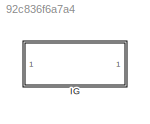
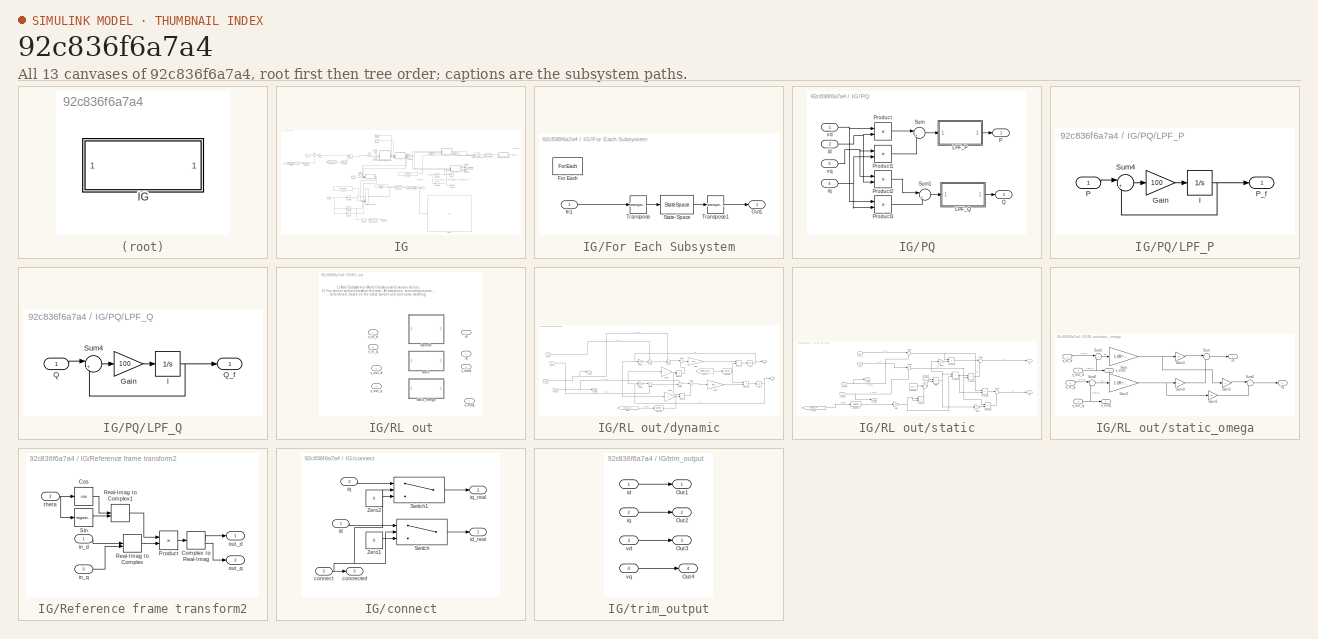
[diagram: thumbnail index - all 13 canvases of the model, root first then tree order]
MODEL slx_92c836f6a7a4
KIND model
CONFIG AbsTol = auto
CONFIG EnableMultiTasking = off
CONFIG FixedStep = auto
CONFIG MaxStep = auto
CONFIG MinStep = auto
CONFIG RelTol = 1e-3
CONFIG SampleTimeConstraint = Unconstrained
CONFIG SolverName = VariableStepAuto
CONFIG StartTime = 0.0
CONFIG StopTime = 10.0
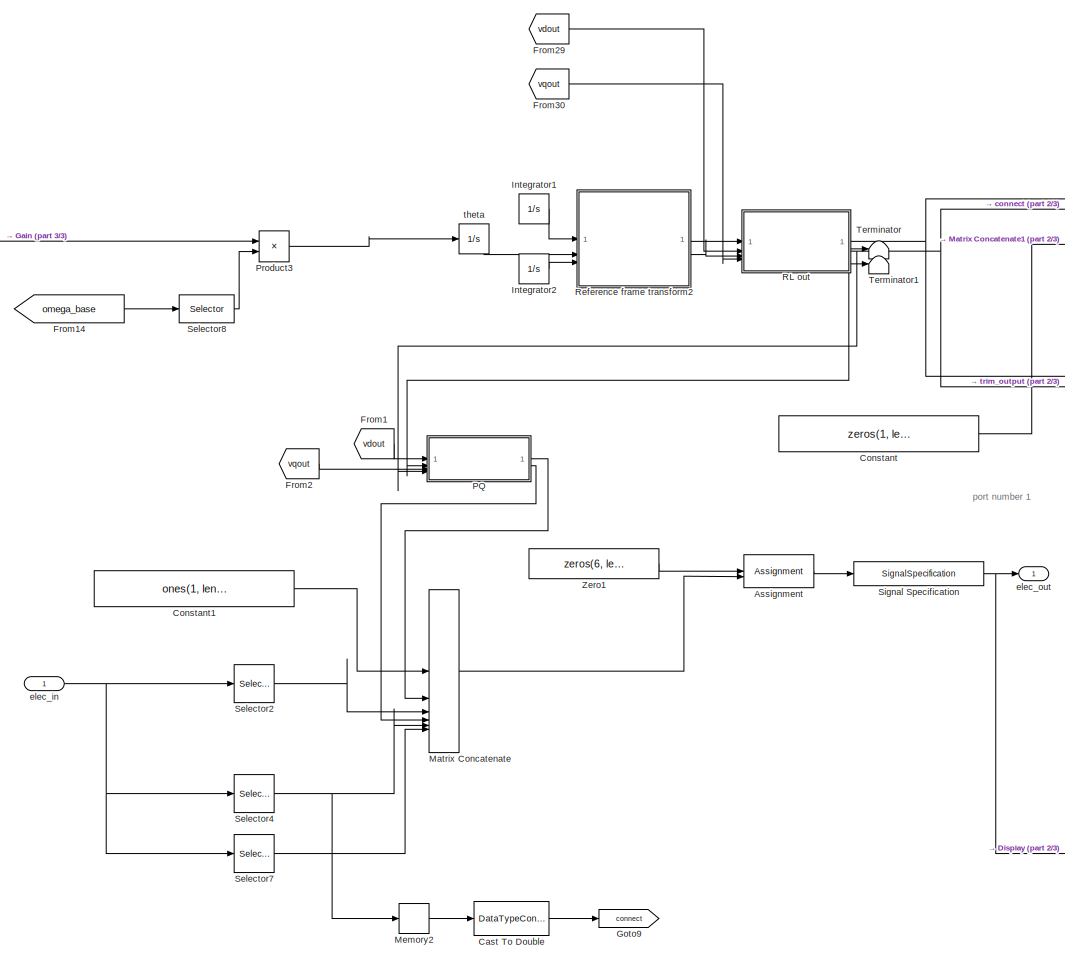
[diagram: IG - part 1/3, center side, full height]
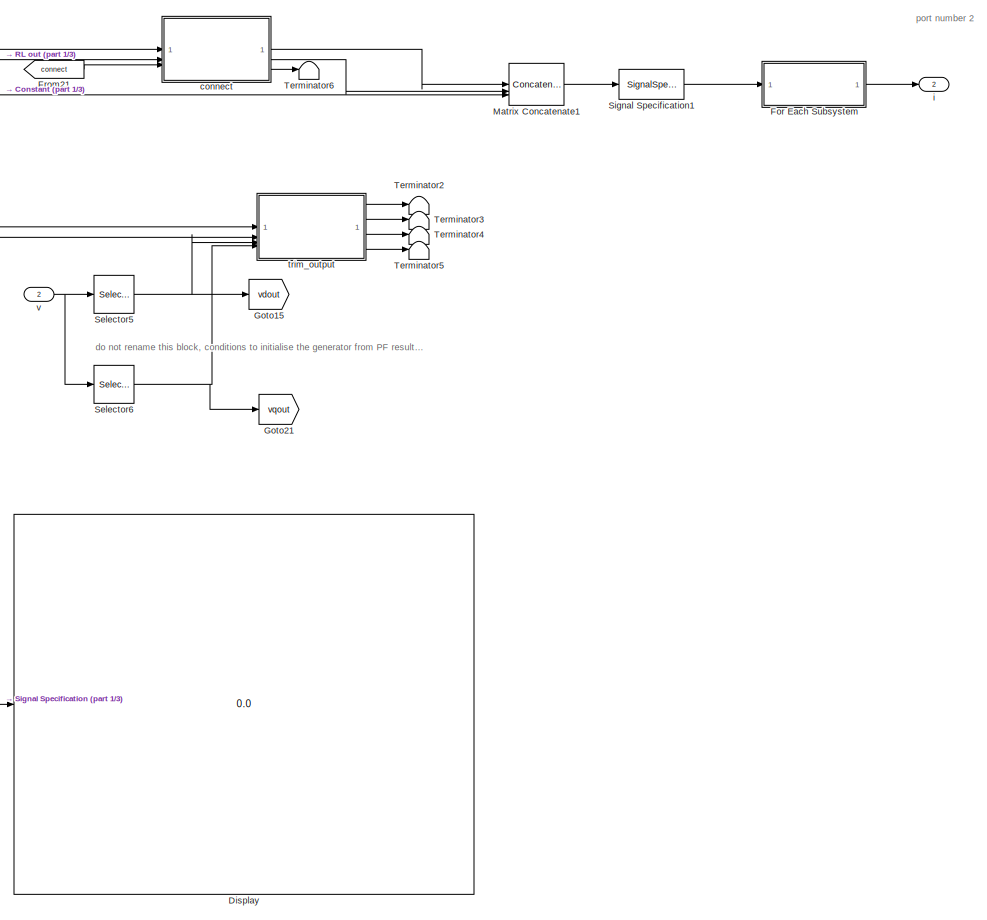
[diagram: IG - part 2/3, right side, full height]
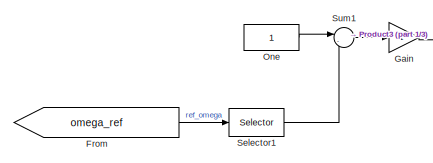
[diagram: IG - part 3/3, top left region]
BLOCK [SubSystem] IG
  Commented = on
BLOCK [Assignment] IG/Assignment
  DiagnosticForDimensions = Warning
  IndexOptions = Assign all,Index vector (dialog)
  Indices = 1,block_idx
  NumberOfDimensions = 2
  OutputSizes = 1,1
BLOCK [DataTypeConversion] IG/Cast To Double
  OutDataTypeStr = boolean
  RndMeth = Floor
  SaturateOnIntegerOverflow = off
BLOCK [Constant] IG/Constant
  Value = zeros(1, length(block_buses))
  VectorParams1D = off
BLOCK [Constant] IG/Constant1
  Value = ones(1, length(block_buses))
  VectorParams1D = off
BLOCK [Display] IG/Display
  Decimation = 1
BLOCK [SubSystem] IG/For Each Subsystem
  TreatAsAtomicUnit = on
BLOCK [ForEach] IG/For Each Subsystem/For Each
  DisableCoverage = on
BLOCK [Inport] IG/For Each Subsystem/In1
  Partition = on
  PartitionDimension = 1
  PartitionOffset = 0
  PartitionWidth = 1
BLOCK [Outport] IG/For Each Subsystem/Out1
  ConcatenationDimension = 1
BLOCK [StateSpace] IG/For Each Subsystem/State-Space
  A = []
  B = []
  C = []
  D = block_toM
  InitialCondition = 0
  ParameterTunability = Optimized
BLOCK [Math] IG/For Each Subsystem/Transpose
  Operator = transpose
BLOCK [Math] IG/For Each Subsystem/Transpose1
  Operator = transpose
BLOCK [From] IG/From
  GotoTag = omega_ref
  TagVisibility = scoped
BLOCK [From] IG/From1
  GotoTag = vdout
BLOCK [From] IG/From14
  GotoTag = omega_base
  TagVisibility = scoped
BLOCK [From] IG/From2
  GotoTag = vqout
BLOCK [From] IG/From21
  GotoTag = connect
BLOCK [From] IG/From29
  GotoTag = vdout
BLOCK [From] IG/From30
  GotoTag = vqout
BLOCK [Gain] IG/Gain
  Gain = -1
BLOCK [Goto] IG/Goto15
  GotoTag = vdout
BLOCK [Goto] IG/Goto21
  GotoTag = vqout
BLOCK [Goto] IG/Goto9
  GotoTag = connect
BLOCK [Integrator] IG/Integrator1
  InitialCondition = Grid_op_IG.op.States(1).x'
BLOCK [Integrator] IG/Integrator2
  InitialCondition = Grid_op_IG.op.States(2).x'
BLOCK [Concatenate] IG/Matrix Concatenate
  Mode = Multidimensional array
  NumInputs = 6
BLOCK [Concatenate] IG/Matrix Concatenate1
  Mode = Multidimensional array
  NumInputs = 3
BLOCK [Memory] IG/Memory2
  InitialCondition = 1
BLOCK [Constant] IG/One
  OutDataTypeStr = Inherit: Inherit via back propagation
BLOCK [SubSystem] IG/PQ
BLOCK [SubSystem] IG/PQ/LPF_P
BLOCK [Gain] IG/PQ/LPF_P/Gain
  Gain = 100
BLOCK [Integrator] IG/PQ/LPF_P/I
  InitialCondition = Grid_op_IG.op.States(3).x'
BLOCK [Inport] IG/PQ/LPF_P/P
BLOCK [Outport] IG/PQ/LPF_P/P_f
BLOCK [Sum] IG/PQ/LPF_P/Sum4
  Inputs = |+-
BLOCK [SubSystem] IG/PQ/LPF_Q
BLOCK [Gain] IG/PQ/LPF_Q/Gain
  Gain = 100
BLOCK [Integrator] IG/PQ/LPF_Q/I
  InitialCondition = Grid_op_IG.op.States(4).x'
BLOCK [Inport] IG/PQ/LPF_Q/Q
BLOCK [Outport] IG/PQ/LPF_Q/Q_f
BLOCK [Sum] IG/PQ/LPF_Q/Sum4
  Inputs = |+-
BLOCK [Outport] IG/PQ/P
BLOCK [Product] IG/PQ/Product
BLOCK [Product] IG/PQ/Product1
BLOCK [Product] IG/PQ/Product2
BLOCK [Product] IG/PQ/Product3
BLOCK [Outport] IG/PQ/Q
  Port = 2
BLOCK [Sum] IG/PQ/Sum
  Inputs = |++
BLOCK [Sum] IG/PQ/Sum1
  Inputs = |+-
BLOCK [Inport] IG/PQ/id
  Port = 2
BLOCK [Inport] IG/PQ/iq
  Port = 4
BLOCK [Inport] IG/PQ/vd
BLOCK [Inport] IG/PQ/vq
  Port = 3
BLOCK [Product] IG/Product3
BLOCK [SubSystem] IG/RL out
  LabelModeActiveChoice = dynamic
  Variant = on
  VariantControlMode = label
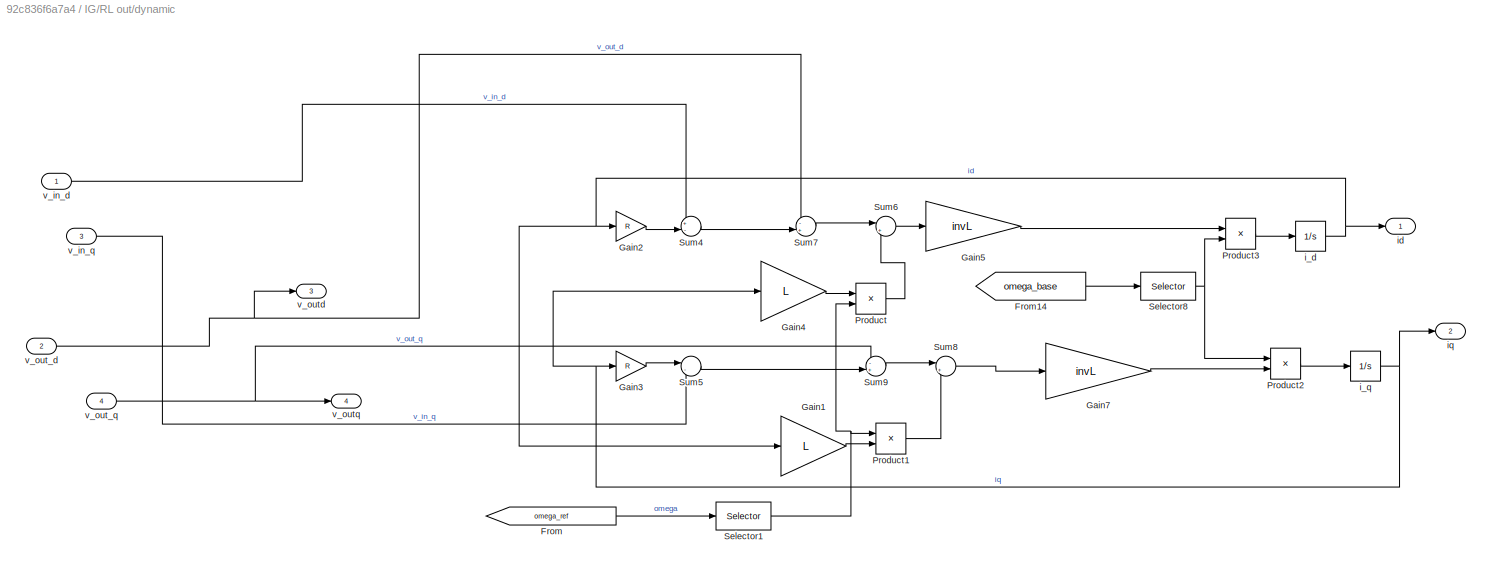
BLOCK [SubSystem] IG/RL out/dynamic
  VariantControl = dynamic
BLOCK [From] IG/RL out/dynamic/From
  GotoTag = omega_ref
  TagVisibility = scoped
BLOCK [From] IG/RL out/dynamic/From14
  GotoTag = omega_base
  TagVisibility = scoped
BLOCK [Gain] IG/RL out/dynamic/Gain1
  Gain = L
BLOCK [Gain] IG/RL out/dynamic/Gain2
  Gain = R
BLOCK [Gain] IG/RL out/dynamic/Gain3
  Gain = R
BLOCK [Gain] IG/RL out/dynamic/Gain4
  Gain = L
BLOCK [Gain] IG/RL out/dynamic/Gain5
  Gain = invL
BLOCK [Gain] IG/RL out/dynamic/Gain7
  Gain = invL
BLOCK [Product] IG/RL out/dynamic/Product
BLOCK [Product] IG/RL out/dynamic/Product1
BLOCK [Product] IG/RL out/dynamic/Product2
BLOCK [Product] IG/RL out/dynamic/Product3
BLOCK [Selector] IG/RL out/dynamic/Selector1
  IndexOptions = Index vector (dialog)
  Indices = block_fref
  InputPortWidth = length(fref.ref_units)
  OutputSizes = 1
BLOCK [Selector] IG/RL out/dynamic/Selector8
  IndexOptions = Index vector (dialog)
  Indices = block_fref
  InputPortWidth = length(fref.ref_units)
  OutputSizes = 1
BLOCK [Sum] IG/RL out/dynamic/Sum4
  Inputs = +-|
BLOCK [Sum] IG/RL out/dynamic/Sum5
  Inputs = |-+
BLOCK [Sum] IG/RL out/dynamic/Sum6
  Inputs = |++
BLOCK [Sum] IG/RL out/dynamic/Sum7
  Inputs = -+|
BLOCK [Sum] IG/RL out/dynamic/Sum8
  Inputs = |+-
BLOCK [Sum] IG/RL out/dynamic/Sum9
  Inputs = -+|
BLOCK [Integrator] IG/RL out/dynamic/i_d
  InitialCondition = Grid_op_IG.op.States(5).x'
BLOCK [Integrator] IG/RL out/dynamic/i_q
  InitialCondition = Grid_op_IG.op.States(6).x'
BLOCK [Outport] IG/RL out/dynamic/id
  IconDisplay = Signal name
BLOCK [Outport] IG/RL out/dynamic/iq
  IconDisplay = Signal name
  Port = 2
BLOCK [Inport] IG/RL out/dynamic/v_in_d
  IconDisplay = Signal name
BLOCK [Inport] IG/RL out/dynamic/v_in_q
  IconDisplay = Signal name
  Port = 3
BLOCK [Inport] IG/RL out/dynamic/v_out_d
  Port = 2
BLOCK [Inport] IG/RL out/dynamic/v_out_q
  Port = 4
BLOCK [Outport] IG/RL out/dynamic/v_outd
  Port = 3
BLOCK [Outport] IG/RL out/dynamic/v_outq
  Port = 4
BLOCK [Outport] IG/RL out/id
BLOCK [Outport] IG/RL out/iq
  IconDisplay = Signal name
  Port = 2
BLOCK [SubSystem] IG/RL out/static
  VariantControl = static
BLOCK [Constant] IG/RL out/static/Constant
  Value = R.^2
BLOCK [Constant] IG/RL out/static/Constant1
BLOCK [Product] IG/RL out/static/Divide
  Inputs = */
BLOCK [From] IG/RL out/static/From
  GotoTag = omega_ref
  TagVisibility = scoped
BLOCK [Gain] IG/RL out/static/Gain
  Gain = L
BLOCK [Gain] IG/RL out/static/Gain1
  Gain = R
BLOCK [Gain] IG/RL out/static/Gain2
  Gain = R
BLOCK [Product] IG/RL out/static/Product
BLOCK [Product] IG/RL out/static/Product1
BLOCK [Product] IG/RL out/static/Product2
BLOCK [Product] IG/RL out/static/Product3
BLOCK [Product] IG/RL out/static/Product4
BLOCK [Product] IG/RL out/static/Product5
BLOCK [Selector] IG/RL out/static/Selector8
  IndexOptions = Index vector (dialog)
  Indices = block_fref
  InputPortWidth = length(fref.ref_units)
  OutputSizes = 1
BLOCK [Sum] IG/RL out/static/Sum
  Inputs = |++
BLOCK [Sum] IG/RL out/static/Sum1
  Inputs = |+-
BLOCK [Sum] IG/RL out/static/Sum2
  Inputs = |+-
BLOCK [Sum] IG/RL out/static/Sum3
  Inputs = |++
BLOCK [Sum] IG/RL out/static/Sum4
  Inputs = |-+
BLOCK [Outport] IG/RL out/static/id
BLOCK [Outport] IG/RL out/static/iq
  IconDisplay = Signal name
  Port = 2
BLOCK [Inport] IG/RL out/static/v_in_d
  IconDisplay = Signal name
BLOCK [Inport] IG/RL out/static/v_in_q
  IconDisplay = Signal name
  Port = 3
BLOCK [Inport] IG/RL out/static/v_out_d
  Port = 2
BLOCK [Inport] IG/RL out/static/v_out_q
  Port = 4
BLOCK [Outport] IG/RL out/static/v_outd
  Port = 3
BLOCK [Outport] IG/RL out/static/v_outq
  Port = 4
BLOCK [SubSystem] IG/RL out/static_omega
  VariantControl = static_omega
BLOCK [Gain] IG/RL out/static_omega/Gain
  Gain = 1./(R.^2+L.^2)
BLOCK [Gain] IG/RL out/static_omega/Gain2
  Gain = 1./(R.^2+L.^2)
BLOCK [Gain] IG/RL out/static_omega/Gain3
  Gain = R
BLOCK [Gain] IG/RL out/static_omega/Gain4
  Gain = L
BLOCK [Gain] IG/RL out/static_omega/Gain5
  Gain = L
BLOCK [Gain] IG/RL out/static_omega/Gain6
  Gain = R
BLOCK [Sum] IG/RL out/static_omega/Sum
  Inputs = |++
BLOCK [Sum] IG/RL out/static_omega/Sum1
  Inputs = |+-
BLOCK [Sum] IG/RL out/static_omega/Sum2
  Inputs = |+-
BLOCK [Sum] IG/RL out/static_omega/Sum3
  Inputs = |-+
BLOCK [Outport] IG/RL out/static_omega/id
BLOCK [Outport] IG/RL out/static_omega/iq
  IconDisplay = Signal name
  Port = 2
BLOCK [Inport] IG/RL out/static_omega/v_in_d
  IconDisplay = Signal name
BLOCK [Inport] IG/RL out/static_omega/v_in_q
  IconDisplay = Signal name
  Port = 3
BLOCK [Inport] IG/RL out/static_omega/v_out_d
  Port = 2
BLOCK [Inport] IG/RL out/static_omega/v_out_q
  Port = 4
BLOCK [Outport] IG/RL out/static_omega/v_outd
  Port = 3
BLOCK [Outport] IG/RL out/static_omega/v_outq
  Port = 4
BLOCK [Inport] IG/RL out/v_in_d
  IconDisplay = Signal name
BLOCK [Inport] IG/RL out/v_in_q
  IconDisplay = Signal name
  Port = 3
BLOCK [Inport] IG/RL out/v_out_d
  Port = 2
BLOCK [Inport] IG/RL out/v_out_q
  Port = 4
BLOCK [Outport] IG/RL out/v_outd
  Port = 3
BLOCK [Outport] IG/RL out/v_outq
  Port = 4
BLOCK [SubSystem] IG/Reference frame transform2
BLOCK [ComplexToRealImag] IG/Reference frame transform2/Complex to Real-Imag
BLOCK [Trigonometry] IG/Reference frame transform2/Cos
  Operator = cos
  SCDEnableBlockLinearizationSpecification = on
BLOCK [Product] IG/Reference frame transform2/Product
BLOCK [RealImagToComplex] IG/Reference frame transform2/Real-Imag to Complex
BLOCK [RealImagToComplex] IG/Reference frame transform2/Real-Imag to Complex1
BLOCK [Trigonometry] IG/Reference frame transform2/Sin
  SCDEnableBlockLinearizationSpecification = on
BLOCK [Inport] IG/Reference frame transform2/in_d
BLOCK [Inport] IG/Reference frame transform2/in_q
  Port = 3
BLOCK [Outport] IG/Reference frame transform2/out_d
BLOCK [Outport] IG/Reference frame transform2/out_q
  Port = 2
BLOCK [Inport] IG/Reference frame transform2/theta
  Port = 2
BLOCK [Selector] IG/Selector1
  IndexOptions = Index vector (dialog)
  Indices = block_fref
  InputPortWidth = length(fref.ref_units)
  OutputSizes = 1
BLOCK [Selector] IG/Selector2
  IndexOptions = Index vector (dialog),Index vector (dialog)
  Indices = 3,block_idx
  InputPortWidth = 3
  NumberOfDimensions = 2
  OutputSizes = 1,1
BLOCK [Selector] IG/Selector4
  IndexOptions = Index vector (dialog),Index vector (dialog)
  Indices = 5,block_idx
  InputPortWidth = 3
  NumberOfDimensions = 2
  OutputSizes = 1,1
BLOCK [Selector] IG/Selector5
  IndexOptions = Index vector (dialog),Index vector (dialog)
  Indices = 1,block_buses
  InputPortWidth = 3
  NumberOfDimensions = 2
  OutputSizes = 1,1
BLOCK [Selector] IG/Selector6
  IndexOptions = Index vector (dialog),Index vector (dialog)
  Indices = 2,block_buses
  InputPortWidth = 3
  NumberOfDimensions = 2
  OutputSizes = 1,1
BLOCK [Selector] IG/Selector7
  IndexOptions = Index vector (dialog),Index vector (dialog)
  Indices = 6,block_idx
  InputPortWidth = 3
  NumberOfDimensions = 2
  OutputSizes = 1,1
BLOCK [Selector] IG/Selector8
  IndexOptions = Index vector (dialog)
  Indices = block_fref
  InputPortWidth = length(fref.ref_units)
  OutputSizes = 1
BLOCK [SignalSpecification] IG/Signal Specification
  Dimensions = [6 length(buses_lf)]
BLOCK [SignalSpecification] IG/Signal Specification1
  Dimensions = [3 length(block_buses)]
BLOCK [Sum] IG/Sum1
  Inputs = |-+
BLOCK [Terminator] IG/Terminator
BLOCK [Terminator] IG/Terminator1
BLOCK [Terminator] IG/Terminator2
BLOCK [Terminator] IG/Terminator3
BLOCK [Terminator] IG/Terminator4
BLOCK [Terminator] IG/Terminator5
BLOCK [Terminator] IG/Terminator6
BLOCK [Constant] IG/Zero1
  OutDataTypeStr = Inherit: Inherit via back propagation
  Value = zeros(6, length(buses_lf))
  VectorParams1D = off
BLOCK [SubSystem] IG/connect
BLOCK [Switch] IG/connect/Switch
  Criteria = u2 > Threshold
  InputSameDT = off
  SaturateOnIntegerOverflow = off
  ZeroCross = off
BLOCK [Switch] IG/connect/Switch1
  Criteria = u2 > Threshold
  InputSameDT = off
  SaturateOnIntegerOverflow = off
  ZeroCross = off
BLOCK [Constant] IG/connect/Zero1
  OutDataTypeStr = Inherit: Inherit via back propagation
  Value = 0
  VectorParams1D = off
BLOCK [Constant] IG/connect/Zero2
  OutDataTypeStr = Inherit: Inherit via back propagation
  Value = 0
  VectorParams1D = off
BLOCK [Inport] IG/connect/connect
  Port = 3
BLOCK [Outport] IG/connect/connected
  OutDataTypeStr = boolean
  Port = 3
BLOCK [Inport] IG/connect/id
BLOCK [Outport] IG/connect/id_real
BLOCK [Inport] IG/connect/iq
  Port = 2
BLOCK [Outport] IG/connect/iq_real
  Port = 2
BLOCK [Inport] IG/elec_in
BLOCK [Outport] IG/elec_out
BLOCK [Outport] IG/i
  Port = 2
BLOCK [Integrator] IG/theta
  InitialCondition = Grid_op_IG.op.States(7).x'
  LowerSaturationLimit = 0
  UpperSaturationLimit = 2*pi
BLOCK [SubSystem] IG/trim_output
BLOCK [Outport] IG/trim_output/Out1
BLOCK [Outport] IG/trim_output/Out2
  Port = 2
BLOCK [Outport] IG/trim_output/Out3
  Port = 3
BLOCK [Outport] IG/trim_output/Out4
  Port = 4
BLOCK [Inport] IG/trim_output/id
BLOCK [Inport] IG/trim_output/iq
  Port = 2
BLOCK [Inport] IG/trim_output/vd
  Port = 3
BLOCK [Inport] IG/trim_output/vq
  Port = 4
BLOCK [Inport] IG/v
  Port = 2
ANNOTATION IG: do not rename this block, conditions to initialise the generator from PF result are set on this block's output
ANNOTATION IG: port number 1
ANNOTATION IG: port number 2
ANNOTATION IG/RL out: 1) Add Subsystem or Model blocks as valid variant choices. 2) You cannot connect blocks at this level. At simulation, connectivity is automatically determined, based on the active variant and port name matching.
LINE IG/Assignment:1 -> IG/Signal Specification:1
LINE IG/Cast To Double:1 -> IG/Goto9:1
LINE IG/Constant1:1 -> IG/Matrix Concatenate:1
LINE IG/Constant:1 -> IG/Matrix Concatenate1:3
LINE IG/For Each Subsystem/In1:1 -> IG/For Each Subsystem/Transpose:1
LINE IG/For Each Subsystem/State-Space:1 -> IG/For Each Subsystem/Transpose1:1
LINE IG/For Each Subsystem/Transpose1:1 -> IG/For Each Subsystem/Out1:1
LINE IG/For Each Subsystem/Transpose:1 -> IG/For Each Subsystem/State-Space:1
LINE IG/For Each Subsystem:1 -> IG/i:1
LINE IG/From14:1 -> IG/Selector8:1
LINE IG/From1:1 -> IG/PQ:1
LINE IG/From21:1 -> IG/connect:3
LINE IG/From29:1 -> IG/RL out:2
LINE IG/From2:1 -> IG/PQ:3
LINE IG/From30:1 -> IG/RL out:4
LINE IG/From:1 -> IG/Selector1:1
LINE IG/Gain:1 -> IG/Product3:1
LINE IG/Integrator1:1 -> IG/Reference frame transform2:1
LINE IG/Integrator2:1 -> IG/Reference frame transform2:3
LINE IG/Matrix Concatenate1:1 -> IG/Signal Specification1:1
LINE IG/Matrix Concatenate:1 -> IG/Assignment:2
LINE IG/Memory2:1 -> IG/Cast To Double:1
LINE IG/One:1 -> IG/Sum1:1
LINE IG/PQ/LPF_P/Gain:1 -> IG/PQ/LPF_P/I:1
NET IG/PQ/LPF_P/I:1 -> IG/PQ/LPF_P/P_f:1, IG/PQ/LPF_P/Sum4:2
LINE IG/PQ/LPF_P/P:1 -> IG/PQ/LPF_P/Sum4:1
LINE IG/PQ/LPF_P/Sum4:1 -> IG/PQ/LPF_P/Gain:1
LINE IG/PQ/LPF_P:1 -> IG/PQ/P:1
LINE IG/PQ/LPF_Q/Gain:1 -> IG/PQ/LPF_Q/I:1
NET IG/PQ/LPF_Q/I:1 -> IG/PQ/LPF_Q/Q_f:1, IG/PQ/LPF_Q/Sum4:2
LINE IG/PQ/LPF_Q/Q:1 -> IG/PQ/LPF_Q/Sum4:1
LINE IG/PQ/LPF_Q/Sum4:1 -> IG/PQ/LPF_Q/Gain:1
LINE IG/PQ/LPF_Q:1 -> IG/PQ/Q:1
LINE IG/PQ/Product1:1 -> IG/PQ/Sum:2
LINE IG/PQ/Product2:1 -> IG/PQ/Sum1:1
LINE IG/PQ/Product3:1 -> IG/PQ/Sum1:2
LINE IG/PQ/Product:1 -> IG/PQ/Sum:1
LINE IG/PQ/Sum1:1 -> IG/PQ/LPF_Q:1
LINE IG/PQ/Sum:1 -> IG/PQ/LPF_P:1
NET IG/PQ/id:1 -> IG/PQ/Product2:2, IG/PQ/Product:2
NET IG/PQ/iq:1 -> IG/PQ/Product1:2, IG/PQ/Product3:2
NET IG/PQ/vd:1 -> IG/PQ/Product3:1, IG/PQ/Product:1
NET IG/PQ/vq:1 -> IG/PQ/Product1:1, IG/PQ/Product2:1
LINE IG/PQ:1 -> IG/Matrix Concatenate:2
LINE IG/PQ:2 -> IG/Matrix Concatenate:4
LINE IG/Product3:1 -> IG/theta:1
LINE IG/RL out/dynamic/From14:1 -> IG/RL out/dynamic/Selector8:1
LINE IG/RL out/dynamic/From:1 -> IG/RL out/dynamic/Selector1:1
LINE IG/RL out/dynamic/Gain1:1 -> IG/RL out/dynamic/Product1:2
LINE IG/RL out/dynamic/Gain2:1 -> IG/RL out/dynamic/Sum4:2
LINE IG/RL out/dynamic/Gain3:1 -> IG/RL out/dynamic/Sum5:1
LINE IG/RL out/dynamic/Gain4:1 -> IG/RL out/dynamic/Product:1
LINE IG/RL out/dynamic/Gain5:1 -> IG/RL out/dynamic/Product3:1
LINE IG/RL out/dynamic/Gain7:1 -> IG/RL out/dynamic/Product2:2
LINE IG/RL out/dynamic/Product1:1 -> IG/RL out/dynamic/Sum8:2
LINE IG/RL out/dynamic/Product2:1 -> IG/RL out/dynamic/i_q:1
LINE IG/RL out/dynamic/Product3:1 -> IG/RL out/dynamic/i_d:1
LINE IG/RL out/dynamic/Product:1 -> IG/RL out/dynamic/Sum6:2
NET IG/RL out/dynamic/Selector1:1 -> IG/RL out/dynamic/Product1:1, IG/RL out/dynamic/Product:2
NET IG/RL out/dynamic/Selector8:1 -> IG/RL out/dynamic/Product2:1, IG/RL out/dynamic/Product3:2
LINE IG/RL out/dynamic/Sum4:1 -> IG/RL out/dynamic/Sum7:2
LINE IG/RL out/dynamic/Sum5:1 -> IG/RL out/dynamic/Sum9:2
LINE IG/RL out/dynamic/Sum6:1 -> IG/RL out/dynamic/Gain5:1
LINE IG/RL out/dynamic/Sum7:1 -> IG/RL out/dynamic/Sum6:1
LINE IG/RL out/dynamic/Sum8:1 -> IG/RL out/dynamic/Gain7:1
LINE IG/RL out/dynamic/Sum9:1 -> IG/RL out/dynamic/Sum8:1
NET IG/RL out/dynamic/i_d:1 -> IG/RL out/dynamic/Gain1:1, IG/RL out/dynamic/Gain2:1, IG/RL out/dynamic/id:1
NET IG/RL out/dynamic/i_q:1 -> IG/RL out/dynamic/Gain3:1, IG/RL out/dynamic/Gain4:1, IG/RL out/dynamic/iq:1
LINE IG/RL out/dynamic/v_in_d:1 -> IG/RL out/dynamic/Sum4:1
LINE IG/RL out/dynamic/v_in_q:1 -> IG/RL out/dynamic/Sum5:2
NET IG/RL out/dynamic/v_out_d:1 -> IG/RL out/dynamic/Sum7:1, IG/RL out/dynamic/v_outd:1
NET IG/RL out/dynamic/v_out_q:1 -> IG/RL out/dynamic/Sum9:1, IG/RL out/dynamic/v_outq:1
LINE IG/RL out/static/Constant1:1 -> IG/RL out/static/Divide:1
LINE IG/RL out/static/Constant:1 -> IG/RL out/static/Sum:1
NET IG/RL out/static/Divide:1 -> IG/RL out/static/Gain1:1, IG/RL out/static/Gain2:1, IG/RL out/static/Product2:1
LINE IG/RL out/static/From:1 -> IG/RL out/static/Selector8:1
LINE IG/RL out/static/Gain1:1 -> IG/RL out/static/Product1:2
LINE IG/RL out/static/Gain2:1 -> IG/RL out/static/Product5:2
NET IG/RL out/static/Gain:1 -> IG/RL out/static/Product2:2, IG/RL out/static/Product:1, IG/RL out/static/Product:2
LINE IG/RL out/static/Product1:1 -> IG/RL out/static/Sum3:1
NET IG/RL out/static/Product2:1 -> IG/RL out/static/Product3:1, IG/RL out/static/Product4:2
LINE IG/RL out/static/Product3:1 -> IG/RL out/static/Sum3:2
LINE IG/RL out/static/Product4:1 -> IG/RL out/static/Sum4:1
LINE IG/RL out/static/Product5:1 -> IG/RL out/static/Sum4:2
LINE IG/RL out/static/Product:1 -> IG/RL out/static/Sum:2
LINE IG/RL out/static/Selector8:1 -> IG/RL out/static/Gain:1
NET IG/RL out/static/Sum1:1 -> IG/RL out/static/Product1:1, IG/RL out/static/Product4:1
NET IG/RL out/static/Sum2:1 -> IG/RL out/static/Product3:2, IG/RL out/static/Product5:1
LINE IG/RL out/static/Sum3:1 -> IG/RL out/static/id:1
LINE IG/RL out/static/Sum4:1 -> IG/RL out/static/iq:1
LINE IG/RL out/static/Sum:1 -> IG/RL out/static/Divide:2
LINE IG/RL out/static/v_in_d:1 -> IG/RL out/static/Sum1:1
LINE IG/RL out/static/v_in_q:1 -> IG/RL out/static/Sum2:1
NET IG/RL out/static/v_out_d:1 -> IG/RL out/static/Sum1:2, IG/RL out/static/v_outd:1
NET IG/RL out/static/v_out_q:1 -> IG/RL out/static/Sum2:2, IG/RL out/static/v_outq:1
NET IG/RL out/static_omega/Gain2:1 -> IG/RL out/static_omega/Gain4:1, IG/RL out/static_omega/Gain6:1
LINE IG/RL out/static_omega/Gain3:1 -> IG/RL out/static_omega/Sum:1
LINE IG/RL out/static_omega/Gain4:1 -> IG/RL out/static_omega/Sum:2
LINE IG/RL out/static_omega/Gain5:1 -> IG/RL out/static_omega/Sum3:1
LINE IG/RL out/static_omega/Gain6:1 -> IG/RL out/static_omega/Sum3:2
NET IG/RL out/static_omega/Gain:1 -> IG/RL out/static_omega/Gain3:1, IG/RL out/static_omega/Gain5:1
LINE IG/RL out/static_omega/Sum1:1 -> IG/RL out/static_omega/Gain:1
LINE IG/RL out/static_omega/Sum2:1 -> IG/RL out/static_omega/Gain2:1
LINE IG/RL out/static_omega/Sum3:1 -> IG/RL out/static_omega/iq:1
LINE IG/RL out/static_omega/Sum:1 -> IG/RL out/static_omega/id:1
LINE IG/RL out/static_omega/v_in_d:1 -> IG/RL out/static_omega/Sum1:1
LINE IG/RL out/static_omega/v_in_q:1 -> IG/RL out/static_omega/Sum2:1
NET IG/RL out/static_omega/v_out_d:1 -> IG/RL out/static_omega/Sum1:2, IG/RL out/static_omega/v_outd:1
NET IG/RL out/static_omega/v_out_q:1 -> IG/RL out/static_omega/Sum2:2, IG/RL out/static_omega/v_outq:1
NET IG/RL out:1 -> IG/PQ:2, IG/connect:1, IG/trim_output:1
NET IG/RL out:2 -> IG/PQ:4, IG/connect:2, IG/trim_output:2
LINE IG/RL out:3 -> IG/Terminator:1
LINE IG/RL out:4 -> IG/Terminator1:1
LINE IG/Reference frame transform2/Complex to Real-Imag:1 -> IG/Reference frame transform2/out_d:1
LINE IG/Reference frame transform2/Complex to Real-Imag:2 -> IG/Reference frame transform2/out_q:1
LINE IG/Reference frame transform2/Cos:1 -> IG/Reference frame transform2/Real-Imag to Complex1:1
LINE IG/Reference frame transform2/Product:1 -> IG/Reference frame transform2/Complex to Real-Imag:1
LINE IG/Reference frame transform2/Real-Imag to Complex1:1 -> IG/Reference frame transform2/Product:1
LINE IG/Reference frame transform2/Real-Imag to Complex:1 -> IG/Reference frame transform2/Product:2
LINE IG/Reference frame transform2/Sin:1 -> IG/Reference frame transform2/Real-Imag to Complex1:2
LINE IG/Reference frame transform2/in_d:1 -> IG/Reference frame transform2/Real-Imag to Complex:1
LINE IG/Reference frame transform2/in_q:1 -> IG/Reference frame transform2/Real-Imag to Complex:2
NET IG/Reference frame transform2/theta:1 -> IG/Reference frame transform2/Cos:1, IG/Reference frame transform2/Sin:1
LINE IG/Reference frame transform2:1 -> IG/RL out:1
LINE IG/Reference frame transform2:2 -> IG/RL out:3
LINE IG/Selector1:1 -> IG/Sum1:2
LINE IG/Selector2:1 -> IG/Matrix Concatenate:3
NET IG/Selector4:1 -> IG/Matrix Concatenate:5, IG/Memory2:1
NET IG/Selector5:1 -> IG/Goto15:1, IG/trim_output:3
NET IG/Selector6:1 -> IG/Goto21:1, IG/trim_output:4
LINE IG/Selector7:1 -> IG/Matrix Concatenate:6
LINE IG/Selector8:1 -> IG/Product3:2
LINE IG/Signal Specification1:1 -> IG/For Each Subsystem:1
NET IG/Signal Specification:1 -> IG/Display:1, IG/elec_out:1
LINE IG/Sum1:1 -> IG/Gain:1
LINE IG/Zero1:1 -> IG/Assignment:1
LINE IG/connect/Switch1:1 -> IG/connect/iq_real:1
LINE IG/connect/Switch:1 -> IG/connect/id_real:1
LINE IG/connect/Zero1:1 -> IG/connect/Switch:3
LINE IG/connect/Zero2:1 -> IG/connect/Switch1:3
NET IG/connect/connect:1 -> IG/connect/Switch1:2, IG/connect/Switch:2, IG/connect/connected:1
LINE IG/connect/id:1 -> IG/connect/Switch:1
LINE IG/connect/iq:1 -> IG/connect/Switch1:1
LINE IG/connect:1 -> IG/Matrix Concatenate1:1
LINE IG/connect:2 -> IG/Matrix Concatenate1:2
LINE IG/connect:3 -> IG/Terminator6:1
NET IG/elec_in:1 -> IG/Selector2:1, IG/Selector4:1, IG/Selector7:1
LINE IG/theta:1 -> IG/Reference frame transform2:2
LINE IG/trim_output/id:1 -> IG/trim_output/Out1:1
LINE IG/trim_output/iq:1 -> IG/trim_output/Out2:1
LINE IG/trim_output/vd:1 -> IG/trim_output/Out3:1
LINE IG/trim_output/vq:1 -> IG/trim_output/Out4:1
LINE IG/trim_output:1 -> IG/Terminator2:1
LINE IG/trim_output:2 -> IG/Terminator3:1
LINE IG/trim_output:3 -> IG/Terminator4:1
LINE IG/trim_output:4 -> IG/Terminator5:1
NET IG/v:1 -> IG/Selector5:1, IG/Selector6:1
note: NET lines group one-source signal fan-out (src -> all destinations, sorted); 1:1 wires keep LINE
